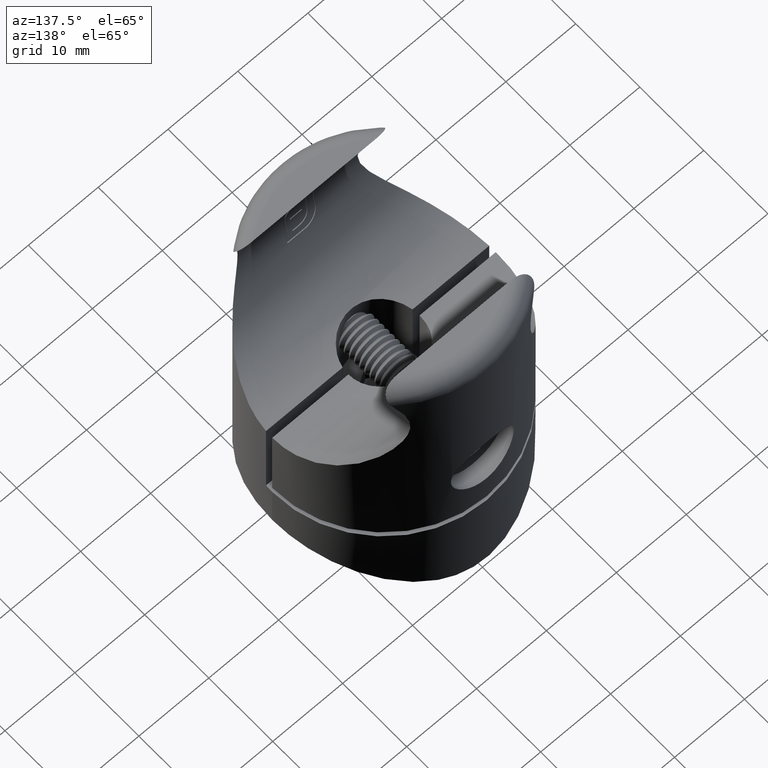
[diagram: clean part render]
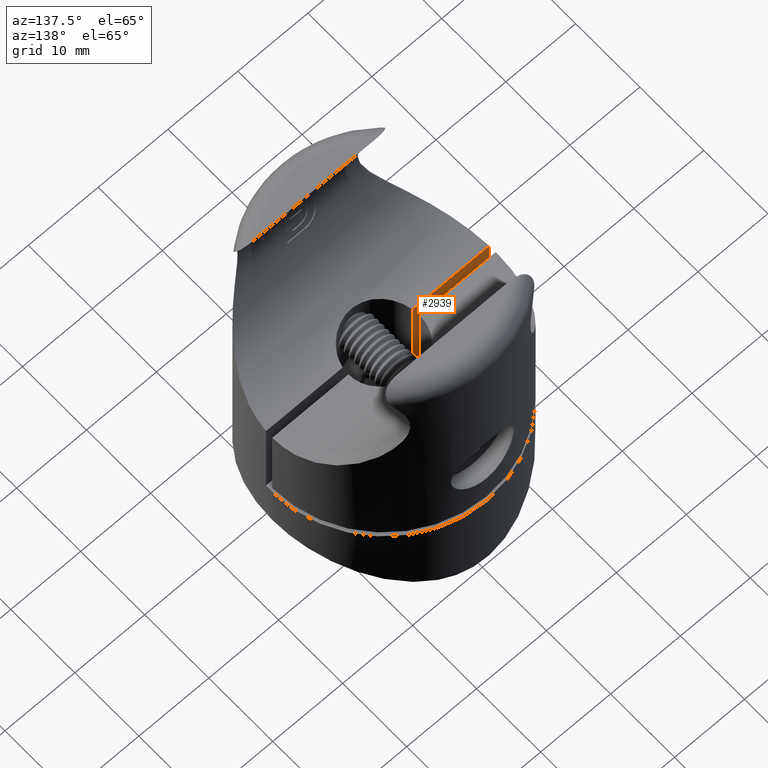
[diagram: same view with one face highlighted and labeled with its STEP entity id]
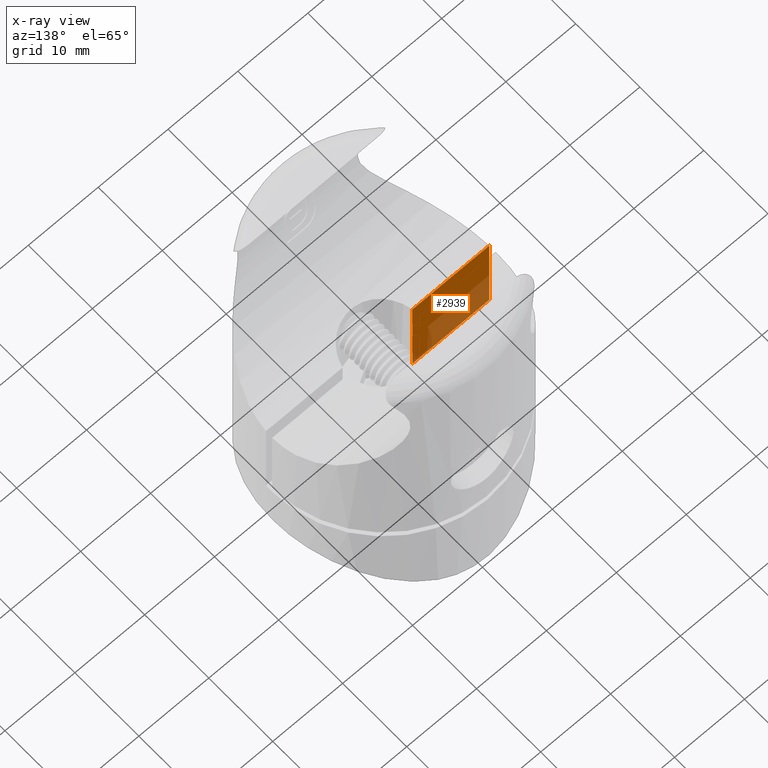
[diagram: x-ray of the same camera — body ghosted, the highlighted face saturated]
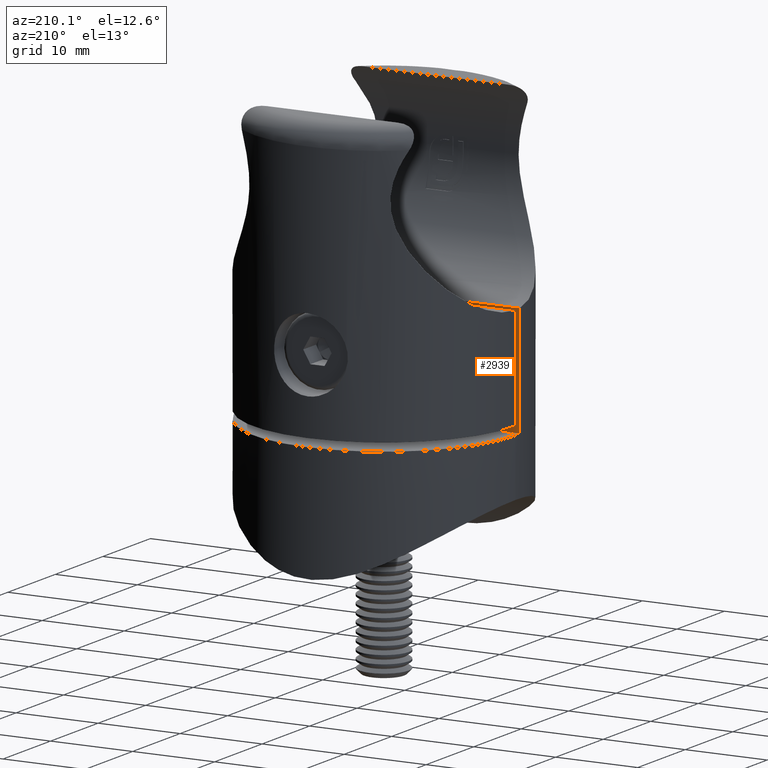
[diagram: same view with one face highlighted and labeled with its STEP entity id]
A machine part, auxiliary view. The second image highlights one B-rep face of the part: STEP entity #2939.
The next image is the same camera in x-ray: the body ghosted, the highlighted face saturated — about 37% of this face is hidden behind the body in this view.
A second angle (auxiliary view) of the same face is appended — the face is thin or edge-on in the first view.
In plain terms, the highlighted planar face has unit normal (0, 1, 0).
Its self-contained STEP definition (entity closure, byte-faithful):
#1516 = VECTOR ( 'NONE', #22335, 1000.000000000000000 ) ;
#2556 = CARTESIAN_POINT ( 'NONE',  ( -5.000999900019993838, -1.000000000000000666, 0.2173295615622988508 ) ) ;
#2690 = CARTESIAN_POINT ( 'NONE',  ( -16.00000000000000000, -1.000000000000000000, -35.00000000000000000 ) ) ;
#2939 = ADVANCED_FACE ( 'NONE', ( #5835 ), #22808, .T. ) ;
#2968 = ORIENTED_EDGE ( 'NONE', *, *, #5701, .T. ) ;
#3240 = DIRECTION ( 'NONE',  ( 0.000000000000000000, -1.601824814781484405E-17, 1.000000000000000000 ) ) ;
#3318 = LINE ( 'NONE', #2556, #5698 ) ;
#4582 = VERTEX_POINT ( 'NONE', #18381 ) ;
#4661 = LINE ( 'NONE', #2690, #26965 ) ;
#5698 = VECTOR ( 'NONE', #7020, 1000.000000000000000 ) ;
#5701 = EDGE_CURVE ( 'NONE', #21922, #4582, #3318, .T. ) ;
#5835 = FACE_OUTER_BOUND ( 'NONE', #27453, .T. ) ;
#6966 = VERTEX_POINT ( 'NONE', #22034 ) ;
#7020 = DIRECTION ( 'NONE',  ( 0.000000000000000000, 0.000000000000000000, -1.000000000000000000 ) ) ;
#7910 = ORIENTED_EDGE ( 'NONE', *, *, #25504, .T. ) ;
#7975 = DIRECTION ( 'NONE',  ( 0.000000000000000000, 1.000000000000000000, 1.601824814781484405E-17 ) ) ;
#8728 = DIRECTION ( 'NONE',  ( 1.000000000000000000, -0.000000000000000000, -0.000000000000000000 ) ) ;
#9230 = CARTESIAN_POINT ( 'NONE',  ( -15.96871942267130962, -1.000000000000000222, -21.46291201783625979 ) ) ;
#13294 = DIRECTION ( 'NONE',  ( 1.000000000000000000, -0.000000000000000000, -0.000000000000000000 ) ) ;
#14289 = ORIENTED_EDGE ( 'NONE', *, *, #23286, .F. ) ;
#14863 = CARTESIAN_POINT ( 'NONE',  ( -16.00000000000000000, -1.000000000000000222, -21.46291201783625979 ) ) ;
#15235 = CARTESIAN_POINT ( 'NONE',  ( -15.96871942267130606, -1.000000000000000000, -42.00000000000000000 ) ) ;
#18381 = CARTESIAN_POINT ( 'NONE',  ( -5.000999900019993838, -1.000000000000000666, -35.00000000000000000 ) ) ;
#20827 = ORIENTED_EDGE ( 'NONE', *, *, #25654, .F. ) ;
#21229 = AXIS2_PLACEMENT_3D ( 'NONE', #25057, #7975, #3240 ) ;
#21922 = VERTEX_POINT ( 'NONE', #23834 ) ;
#22034 = CARTESIAN_POINT ( 'NONE',  ( -15.96871942267130606, -1.000000000000000000, -35.00000000000000000 ) ) ;
#22335 = DIRECTION ( 'NONE',  ( -0.000000000000000000, -0.000000000000000000, -1.000000000000000000 ) ) ;
#22808 = PLANE ( 'NONE',  #21229 ) ;
#23190 = LINE ( 'NONE', #14863, #26893 ) ;
#23286 = EDGE_CURVE ( 'NONE', #6966, #4582, #4661, .T. ) ;
#23369 = VERTEX_POINT ( 'NONE', #9230 ) ;
#23834 = CARTESIAN_POINT ( 'NONE',  ( -5.000999900019993838, -1.000000000000000222, -21.46291201783625979 ) ) ;
#25057 = CARTESIAN_POINT ( 'NONE',  ( -16.00000000000000000, -1.000000000000000666, -1.601824814781485021E-17 ) ) ;
#25504 = EDGE_CURVE ( 'NONE', #23369, #21922, #23190, .T. ) ;
#25654 = EDGE_CURVE ( 'NONE', #23369, #6966, #27532, .T. ) ;
#26893 = VECTOR ( 'NONE', #8728, 1000.000000000000000 ) ;
#26965 = VECTOR ( 'NONE', #13294, 1000.000000000000000 ) ;
#27453 = EDGE_LOOP ( 'NONE', ( #7910, #2968, #14289, #20827 ) ) ;
#27532 = LINE ( 'NONE', #15235, #1516 ) ;